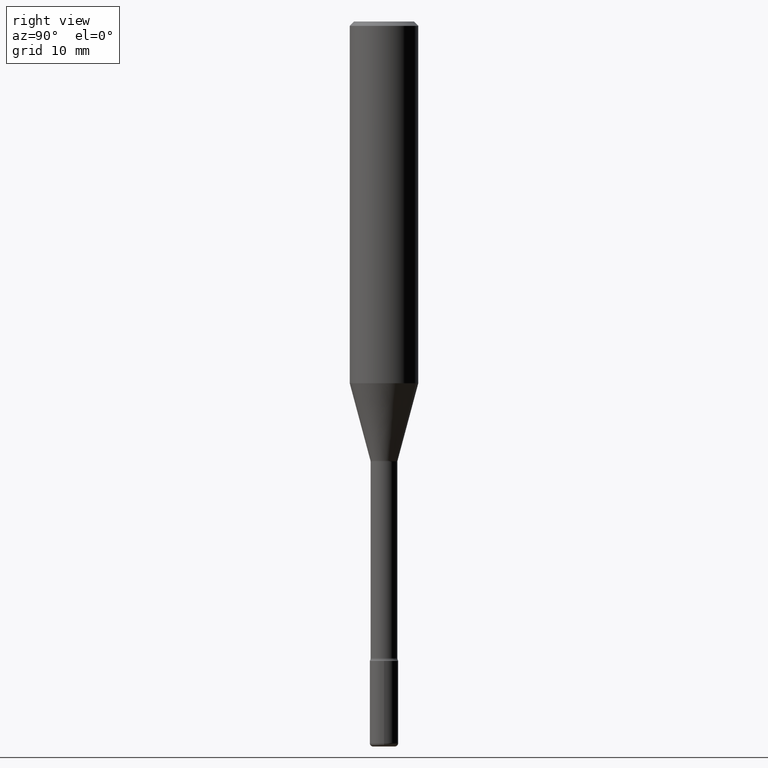
[diagram: clean part render]
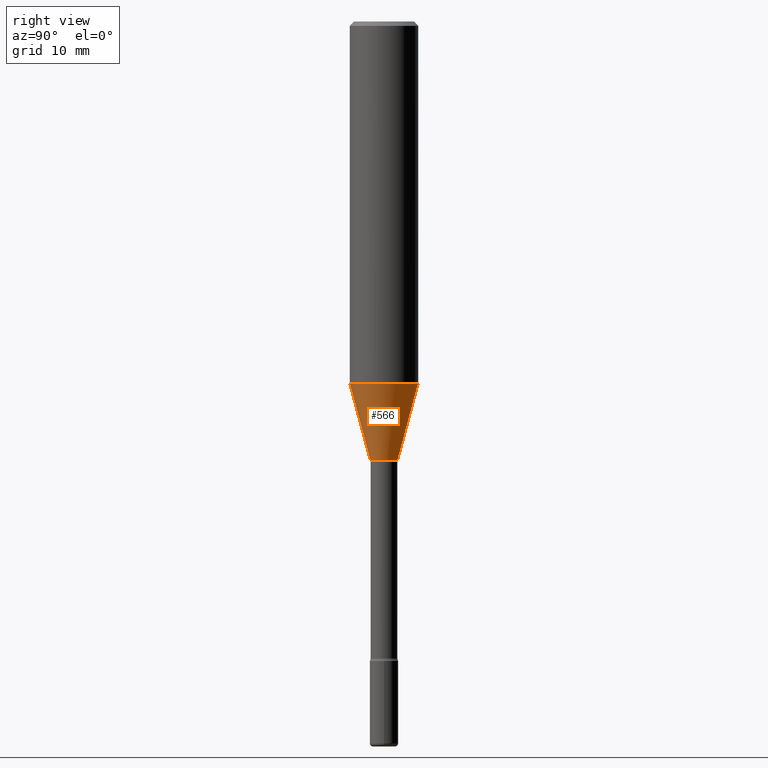
[diagram: same view with one face highlighted and labeled with its STEP entity id]
A machine part, right view. The second image highlights one B-rep face of the part: STEP entity #566.
In plain terms, the highlighted conical surface has half-angle 15 deg.
Its self-contained STEP definition (entity closure, byte-faithful):
#14 = EDGE_CURVE ( 'NONE', #510, #496, #199, .T. ) ;
#41 = CIRCLE ( 'NONE', #136, 0.1180999999999999966 ) ;
#64 = DIRECTION ( 'NONE',  ( -2.445721087227316555E-29, 3.491120058031798950E-15, 1.000000000000000000 ) ) ;
#78 = CARTESIAN_POINT ( 'NONE',  ( 3.322576887801829239E-16, 0.04676111260565870426, -1.513792501787273537 ) ) ;
#93 = ORIENTED_EDGE ( 'NONE', *, *, #319, .T. ) ;
#96 = VERTEX_POINT ( 'NONE', #194 ) ;
#119 = CARTESIAN_POINT ( 'NONE',  ( 3.051164599389650582E-29, -4.355354332476965725E-15, -1.247552149476176764 ) ) ;
#128 = DIRECTION ( 'NONE',  ( -6.982962677686265922E-15, -1.000000000000000000, 5.842136427980041740E-15 ) ) ;
#136 = AXIS2_PLACEMENT_3D ( 'NONE', #119, #64, #479 ) ;
#175 = CARTESIAN_POINT ( 'NONE',  ( 3.702314243307729011E-29, -5.284831366687687522E-15, -1.513792501787273315 ) ) ;
#188 = AXIS2_PLACEMENT_3D ( 'NONE', #485, #346, #128 ) ;
#194 = CARTESIAN_POINT ( 'NONE',  ( -8.246878922347172998E-16, -0.1181000000000043126, -1.247552149476176320 ) ) ;
#199 = LINE ( 'NONE', #78, #436 ) ;
#202 = ORIENTED_EDGE ( 'NONE', *, *, #369, .F. ) ;
#215 = CARTESIAN_POINT ( 'NONE',  ( -3.265311040923994566E-16, -0.04676111260566927219, -1.513792501787273093 ) ) ;
#224 = FACE_OUTER_BOUND ( 'NONE', #405, .T. ) ;
#225 = VECTOR ( 'NONE', #306, 39.37007874015748143 ) ;
#263 = AXIS2_PLACEMENT_3D ( 'NONE', #175, #274, #453 ) ;
#269 = CARTESIAN_POINT ( 'NONE',  ( 5.857043298564459926E-16, 0.04676111260565870426, -1.513792501787273537 ) ) ;
#274 = DIRECTION ( 'NONE',  ( -2.445721087227316555E-29, 3.491120058031798950E-15, 1.000000000000000000 ) ) ;
#282 = EDGE_CURVE ( 'NONE', #96, #496, #41, .T. ) ;
#284 = CIRCLE ( 'NONE', #188, 0.04676111260566399169 ) ;
#295 = ORIENTED_EDGE ( 'NONE', *, *, #14, .T. ) ;
#306 = DIRECTION ( 'NONE',  ( -1.807323732225327773E-15, -0.2588190451025178529, 0.9659258262890690894 ) ) ;
#307 = LINE ( 'NONE', #215, #225 ) ;
#312 = CARTESIAN_POINT ( 'NONE',  ( 8.391509709327088641E-16, 0.1180999999999956807, -1.247552149476177430 ) ) ;
#319 = EDGE_CURVE ( 'NONE', #380, #510, #284, .T. ) ;
#346 = DIRECTION ( 'NONE',  ( -2.445721087227316555E-29, 3.491120058031798950E-15, 1.000000000000000000 ) ) ;
#369 = EDGE_CURVE ( 'NONE', #380, #96, #307, .T. ) ;
#380 = VERTEX_POINT ( 'NONE', #569 ) ;
#405 = EDGE_LOOP ( 'NONE', ( #93, #295, #480, #202 ) ) ;
#436 = VECTOR ( 'NONE', #525, 39.37007874015748854 ) ;
#453 = DIRECTION ( 'NONE',  ( -6.982962677686265922E-15, -1.000000000000000000, 5.842136427980041740E-15 ) ) ;
#479 = DIRECTION ( 'NONE',  ( -6.982962677686265922E-15, -1.000000000000000000, 4.626330217890369336E-15 ) ) ;
#480 = ORIENTED_EDGE ( 'NONE', *, *, #282, .F. ) ;
#485 = CARTESIAN_POINT ( 'NONE',  ( 3.702314243307729011E-29, -5.284831366687687522E-15, -1.513792501787273315 ) ) ;
#496 = VERTEX_POINT ( 'NONE', #312 ) ;
#510 = VERTEX_POINT ( 'NONE', #269 ) ;
#525 = DIRECTION ( 'NONE',  ( 1.839019923739597554E-15, 0.2588190451025245697, 0.9659258262890670910 ) ) ;
#559 = CONICAL_SURFACE ( 'NONE', #263, 0.04676111260566399169, 0.2617993877991499074 ) ;
#566 = ADVANCED_FACE ( 'NONE', ( #224 ), #559, .T. ) ;
#569 = CARTESIAN_POINT ( 'NONE',  ( -3.265311040923994566E-16, -0.04676111260566927219, -1.513792501787273093 ) ) ;